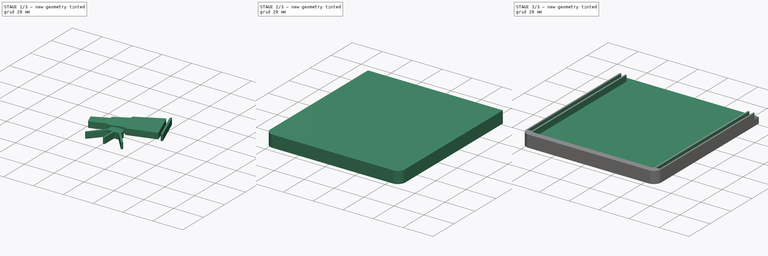
[diagram: build sequence overview — one tinted view per stage of 3, left to right]
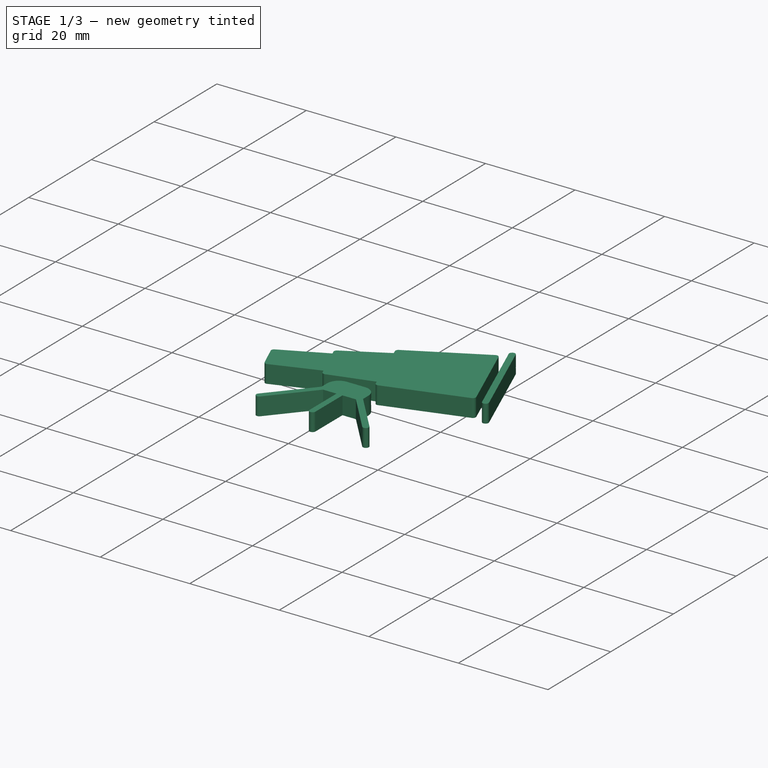
[diagram: stage 1 of 3 — iso view after this stage's code; geometry added in this stage tinted green]
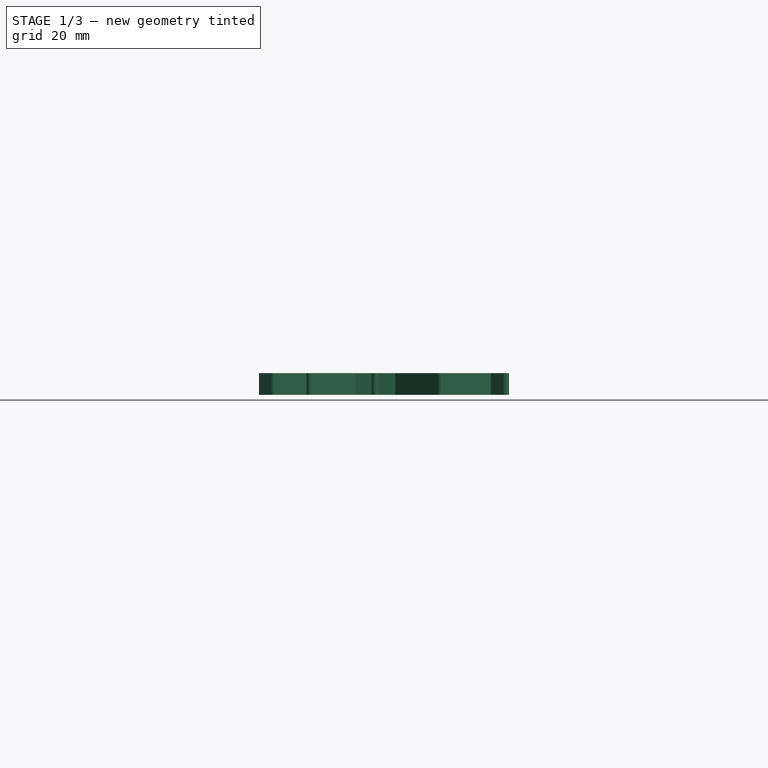
[diagram: stage 1 of 3 — front view after this stage's code; geometry added in this stage tinted green]
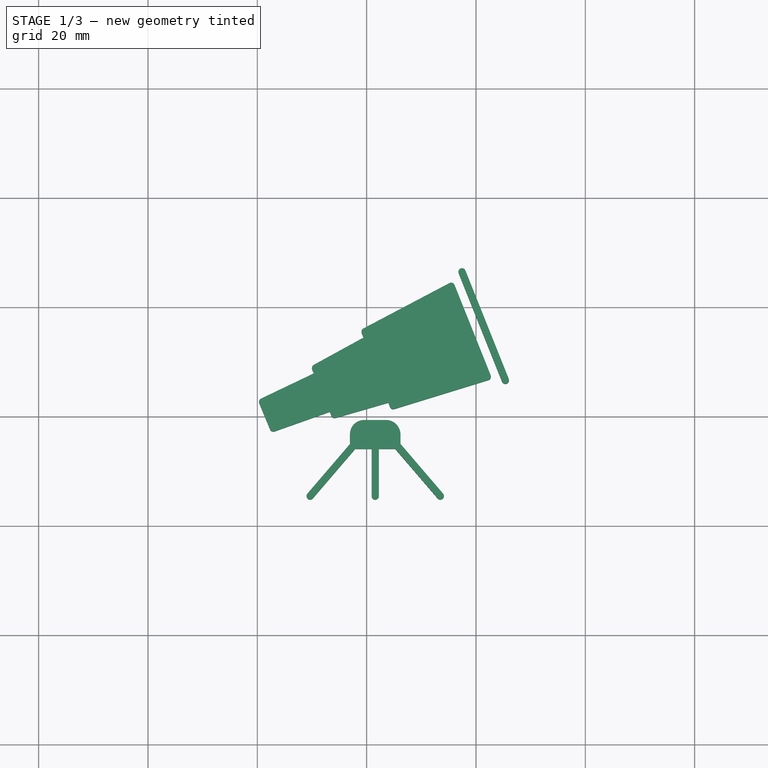
[diagram: stage 1 of 3 — top view after this stage's code; geometry added in this stage tinted green]
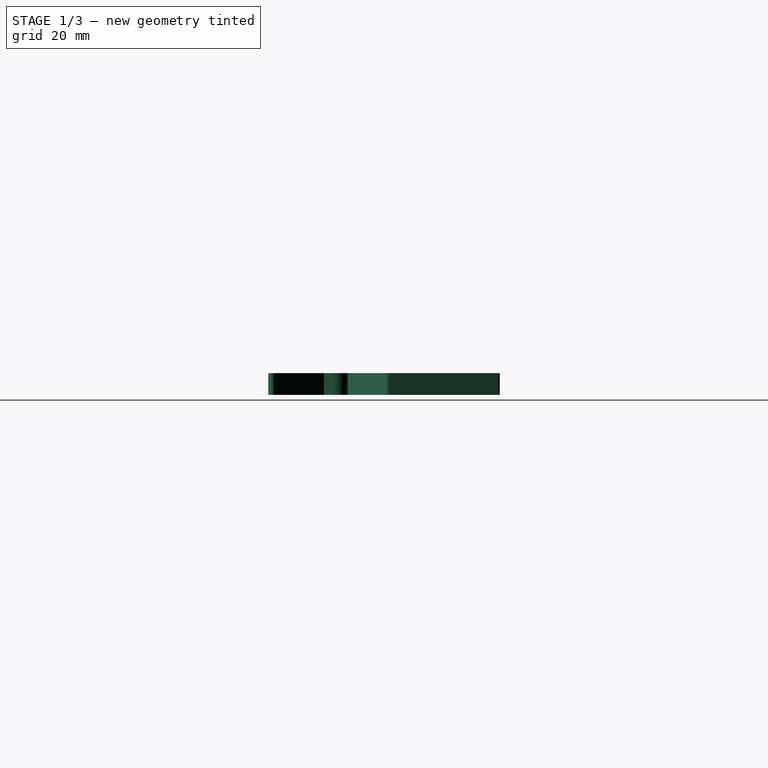
[diagram: stage 1 of 3 — right view after this stage's code; geometry added in this stage tinted green]
FCSTD DOCUMENT  (FreeCAD 1.0R38641 +468 (Git))
Label: EC-Box-Top
License: All rights reserved
LicenseURL: https://en.wikipedia.org/wiki/All_rights_reserved
objects: Sketcher::SketchObject×3, PartDesign::Pocket×2, Part::Feature×1, Part::Face×1, Part::Extrusion×1, PartDesign::FeatureBase×1, PartDesign::Pad×1, PartDesign::Body×1
note: 21 computed .brp shape members not serialized (recipe doc carries the construction recipe); baked Part::Feature solids carry a one-line shape summary decoded from their .brp

FEATURE [Sketcher::SketchObject] Sketch
  ArcFitTolerance = 1e-06
  AttachmentSupport = -> [XY_Plane]
  FullyConstrained = true
  MakeInternals = false
  MapMode = 5
  sketch-geometry (8):
    g0: LineSegment StartX=9.15e-14 StartY=98 StartZ=0 EndX=9.15e-14 EndY=5 EndZ=0
    g1: LineSegment StartX=5 StartY=5.3e-15 StartZ=0 EndX=85 EndY=5.3e-15 EndZ=0
    g2: LineSegment StartX=90 StartY=5 StartZ=0 EndX=90 EndY=98 EndZ=0
    g3: LineSegment StartX=90 StartY=98 StartZ=0 EndX=8.53e-14 EndY=98 EndZ=0
    g4: ArcOfCircle CenterX=85 CenterY=5 CenterZ=0 NormalX=0 NormalY=0 NormalZ=1 AngleXU=0 Radius=5 StartAngle=4.71239 EndAngle=6.28319
    g5: GeomPoint [constr] X=90 Y=-6.3e-15 Z=0
    g6: ArcOfCircle CenterX=5 CenterY=5 CenterZ=0 NormalX=0 NormalY=0 NormalZ=1 AngleXU=0 Radius=5 StartAngle=3.14159 EndAngle=4.71239
    g7: GeomPoint [constr] X=0 Y=-6.3e-15 Z=0
  constraints (20):
    c: Coincident(g2,g3)
    c: Coincident(g3,g0)
    c: Vertical(g0)
    c: Vertical(g2)
    c: Horizontal(g1)
    c: Horizontal(g3)
    c: Distance(g0,g2) = 90
    c: Distance(g7,g3) = 98
    c: PointOnObject(g5,g1)
    c: PointOnObject(g5,g2)
    c: Tangent(g1,g4) = -1.5708
    c: Tangent(g2,g4) = -1.5708
    c: PointOnObject(g7,g0)
    c: PointOnObject(g7,g1)
    c: Tangent(g0,g6) = -1.5708
    c: Tangent(g1,g6) = -1.5708
    c: DistanceX(g0,g6) = 5
    c: DistanceX(g4,g2) = 5
    c: DistanceY(g-1,g0) = 98
    c: DistanceX(g-1,g0) = 0
FEATURE [Part::Feature] Union001
  shape: bbox 45.8 x 42.37 x 1e-06 mm, 3 faces, 0 solids (baked)
FEATURE [Part::Face] Face001
  FaceMakerClass = Part::FaceMakerBullseye
  Sources = -> [Union001]
FEATURE [Sketcher::SketchObject] Sketch001
  ArcFitTolerance = 1e-06
  AttachmentSupport = -> [XY_Plane]
  FullyConstrained = true
  MakeInternals = false
  MapMode = 5
  sketch-geometry (12):
    g0: LineSegment StartX=4.5 StartY=98 StartZ=0 EndX=4.5 EndY=5 EndZ=0
    g1: LineSegment StartX=5.5 StartY=4 StartZ=0 EndX=84.5 EndY=4 EndZ=0
    g2: LineSegment StartX=85.5 StartY=5 StartZ=0 EndX=85.5 EndY=98 EndZ=0
    g3: LineSegment StartX=85.5 StartY=98 StartZ=0 EndX=4.5 EndY=98 EndZ=0
    g4: ArcOfCircle CenterX=84.5 CenterY=5 CenterZ=0 NormalX=0 NormalY=0 NormalZ=1 AngleXU=0 Radius=1 StartAngle=4.71239 EndAngle=6.28319
    g5: GeomPoint [constr] X=85.5 Y=4 Z=0
    g6: ArcOfCircle CenterX=5.5 CenterY=5 CenterZ=0 NormalX=0 NormalY=0 NormalZ=1 AngleXU=0 Radius=1 StartAngle=3.14159 EndAngle=4.71239
    g7: GeomPoint [constr] X=4.5 Y=4 Z=0
    g8: LineSegment StartX=0 StartY=98 StartZ=0 EndX=0 EndY=94 EndZ=0
    g9: LineSegment StartX=0 StartY=94 StartZ=0 EndX=90 EndY=94 EndZ=0
    g10: LineSegment StartX=90 StartY=94 StartZ=0 EndX=90 EndY=98 EndZ=0
    g11: LineSegment StartX=90 StartY=98 StartZ=0 EndX=0 EndY=98 EndZ=0
  constraints (32):
    c: Coincident(g2,g3)
    c: Coincident(g3,g0)
    c: Vertical(g0)
    c: Vertical(g2)
    c: Horizontal(g1)
    c: Horizontal(g3)
    c: Distance(g0,g2) = 81
    c: Distance(g7,g3) = 94
    c: DistanceY(g-1,g0) = 98
    c: DistanceX(g-1,g0) = 4.5
    c: PointOnObject(g5,g1)
    c: PointOnObject(g5,g2)
    c: Tangent(g1,g4) = -1.5708
    c: Tangent(g2,g4) = -1.5708
    c: PointOnObject(g7,g0)
    c: PointOnObject(g7,g1)
    c: Tangent(g0,g6) = -1.5708
    c: Tangent(g1,g6) = -1.5708
    c: DistanceX(g4,g2) = 1
    c: DistanceX(g0,g6) = 1
    c: Coincident(g8,g9)
    c: Coincident(g9,g10)
    c: Coincident(g10,g11)
    c: Coincident(g11,g8)
    c: Vertical(g8)
    c: Vertical(g10)
    c: Horizontal(g9)
    c: Horizontal(g11)
    c: Distance(g8,g10) = 90
    c: Distance(g9,g11) = 4
    c: DistanceY(g-1,g8) = 94
    c: DistanceX(g8,g-1) = 0
FEATURE [Part::Extrusion] Extrude
  Base = -> Face001
  Dir = (0,0,1)
  DirMode = 2
  FaceMakerClass = Part::FaceMakerBullseye
  FaceMakerMode = 3
  LengthFwd = 4
  LengthRev = 0
  Placement = pos=(2.34815,3.05321,-2) rot=(0,0,1;0rad)
  Solid = true
  Symmetric = false
FEATURE [PartDesign::FeatureBase] BaseFeature
  BaseFeature = -> Extrude
  Suppressed = false
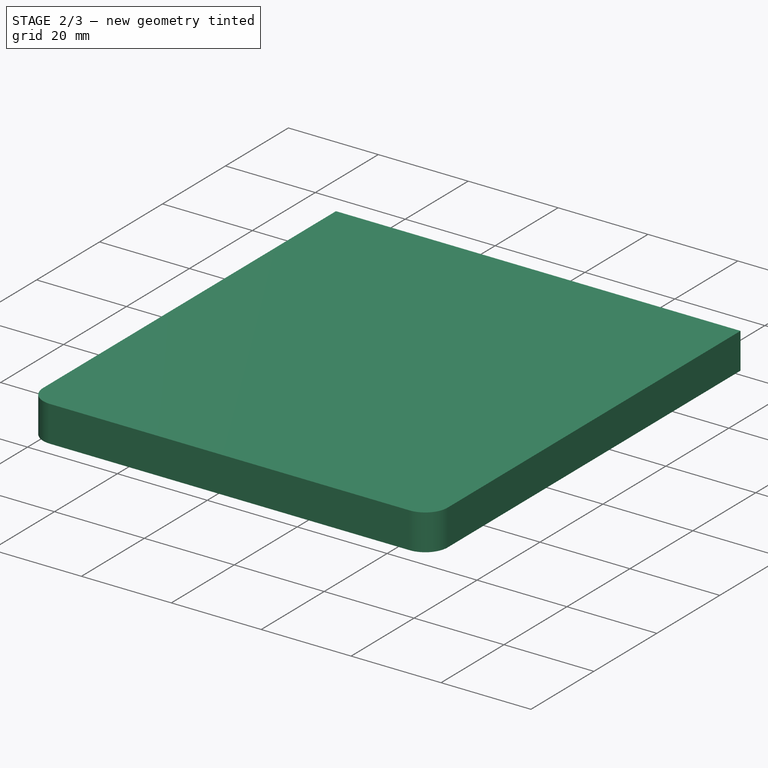
[diagram: stage 2 of 3 — iso view after this stage's code; geometry added in this stage tinted green]
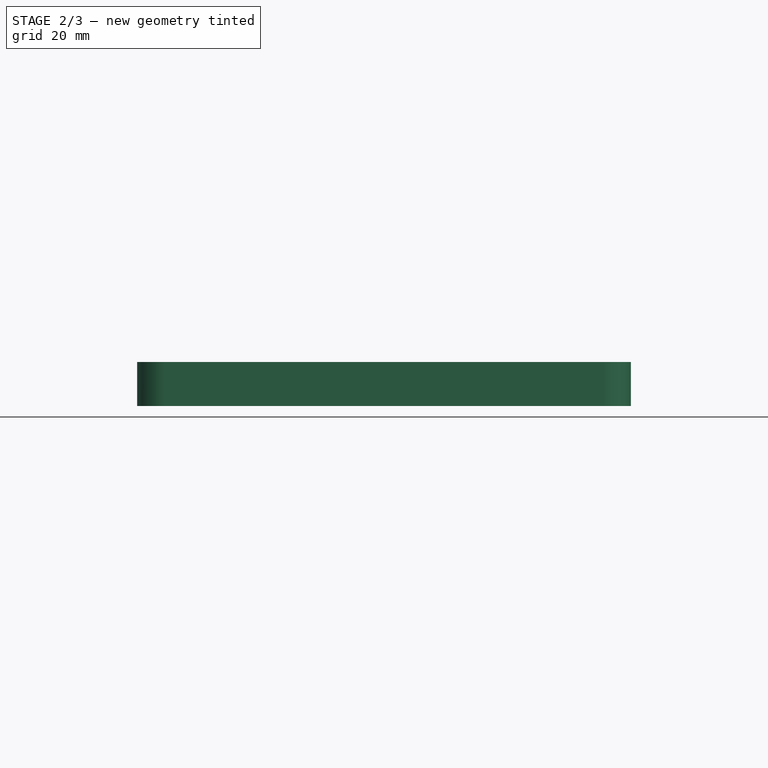
[diagram: stage 2 of 3 — front view after this stage's code; geometry added in this stage tinted green]
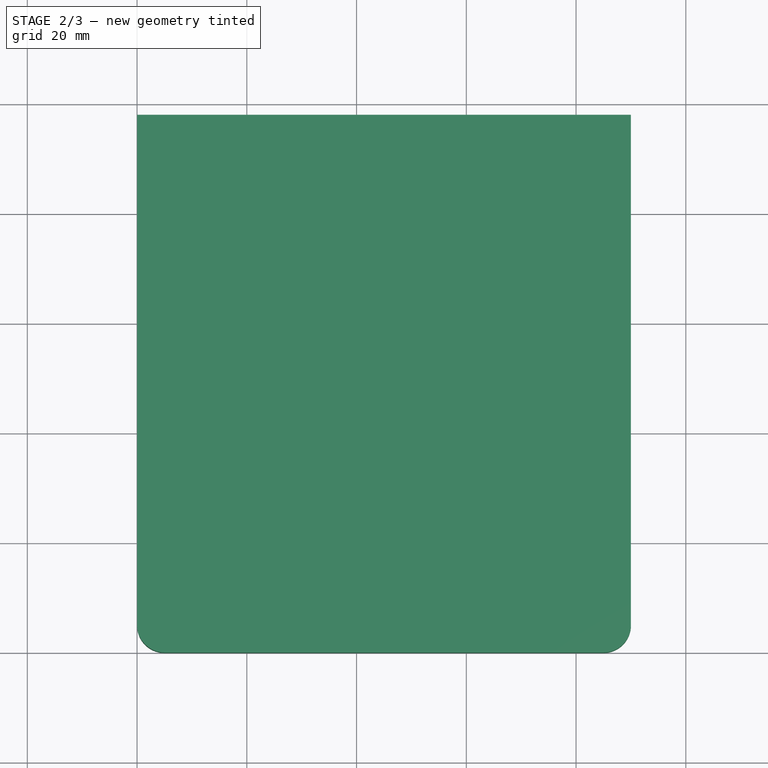
[diagram: stage 2 of 3 — top view after this stage's code; geometry added in this stage tinted green]
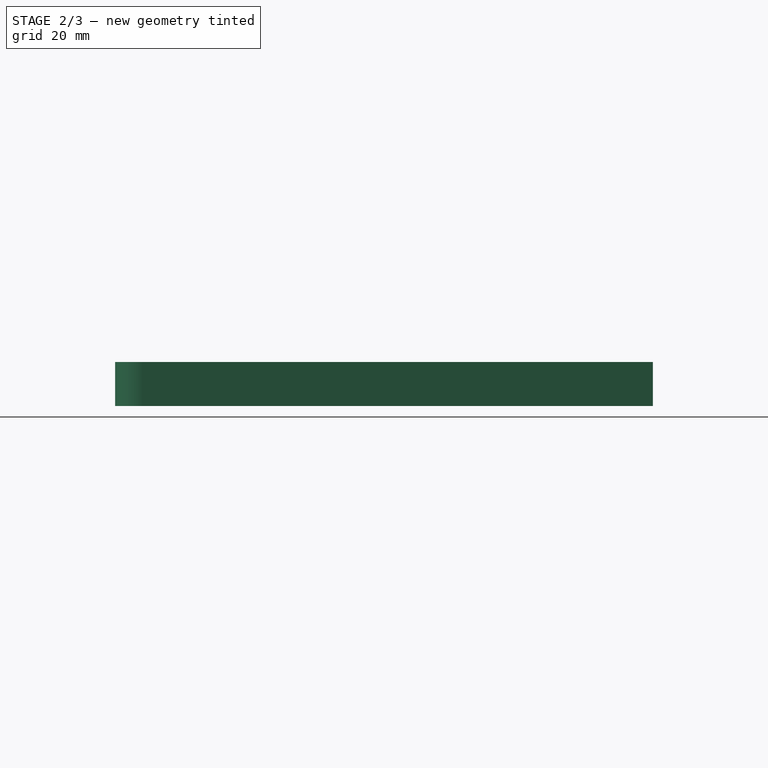
[diagram: stage 2 of 3 — right view after this stage's code; geometry added in this stage tinted green]
FEATURE [PartDesign::Pad] Pad
  BaseFeature = -> BaseFeature
  Direction = (0,0,1)
  Length = 8
  Length2 = 10
  Profile = -> Sketch
  ReferenceAxis = -> Sketch [N_Axis]
  Refine = true
  Suppressed = false
  Type = 0
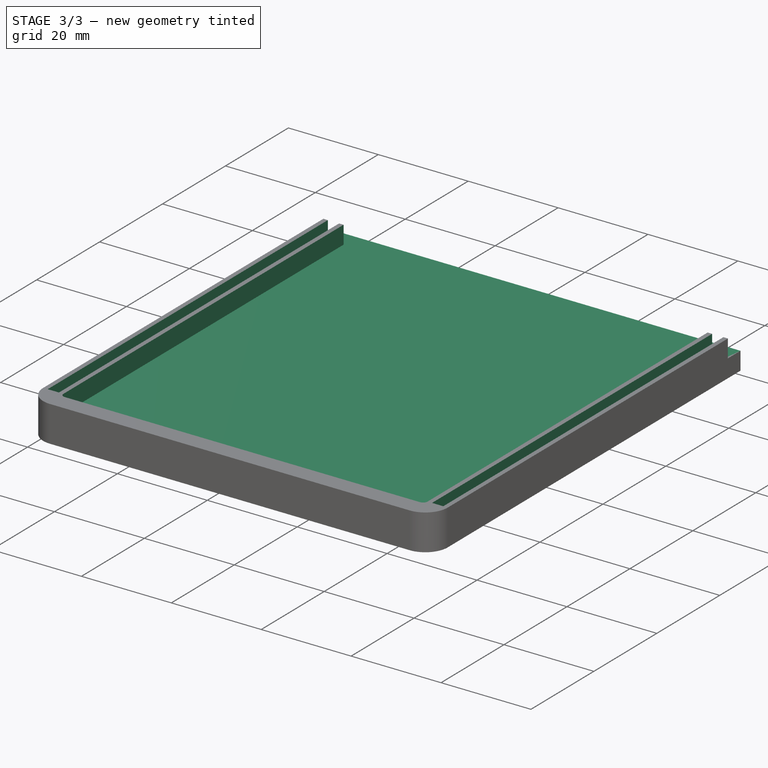
[diagram: stage 3 of 3 — iso view after this stage's code; geometry added in this stage tinted green]
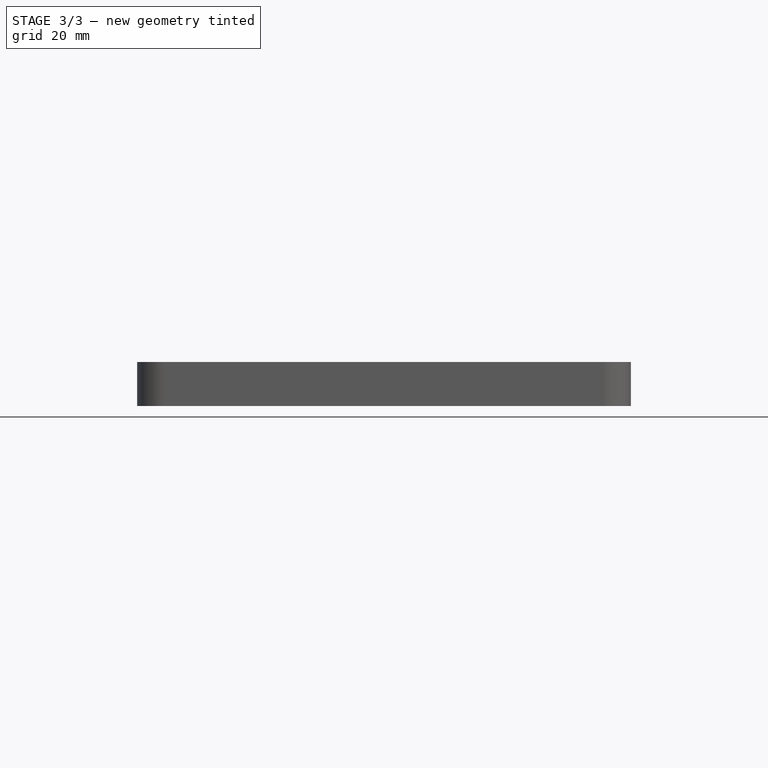
[diagram: stage 3 of 3 — front view after this stage's code; geometry added in this stage tinted green]
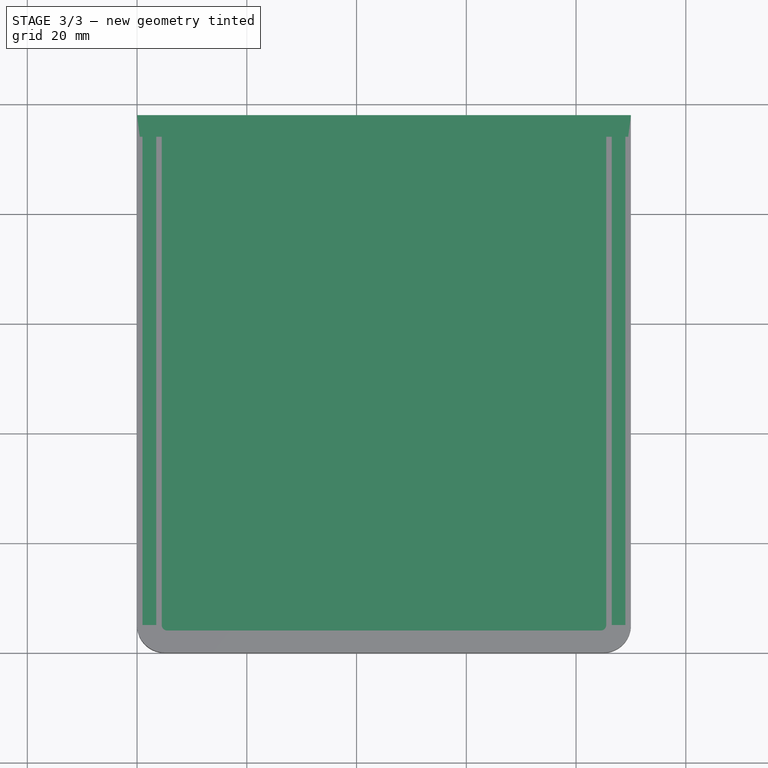
[diagram: stage 3 of 3 — top view after this stage's code; geometry added in this stage tinted green]
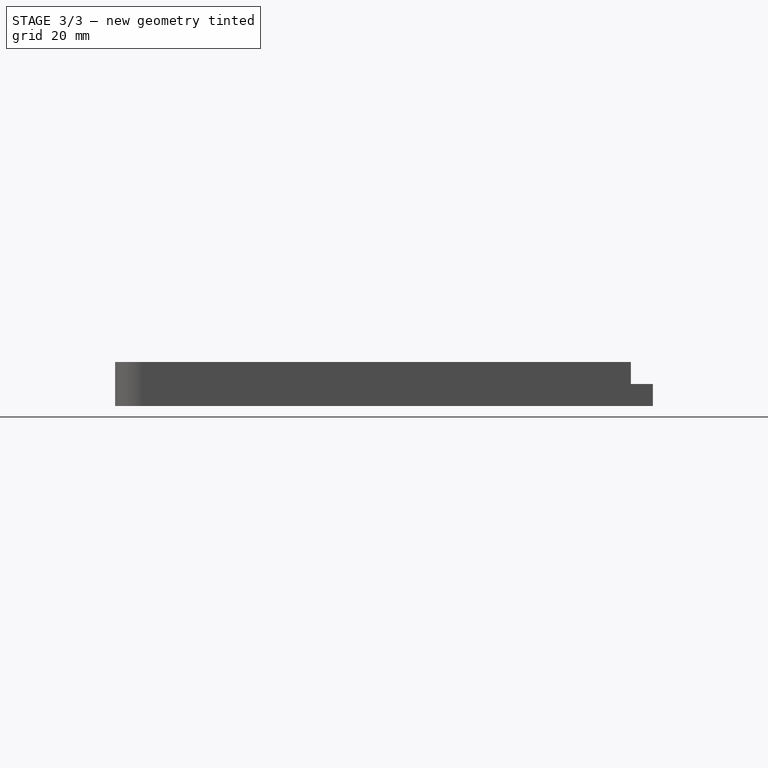
[diagram: stage 3 of 3 — right view after this stage's code; geometry added in this stage tinted green]
FEATURE [PartDesign::Pocket] Pocket
  BaseFeature = -> Pad
  Direction = (0,0,-1)
  Length = 4
  Length2 = -8
  Profile = -> Sketch001
  ReferenceAxis = -> Sketch001 [N_Axis]
  Refine = true
  Reversed = true
  Suppressed = false
  Type = 4
FEATURE [Sketcher::SketchObject] Sketch002  label="side-canals"
  ArcFitTolerance = 1e-06
  AttachmentSupport = -> [XZ_Plane]
  FullyConstrained = true
  MakeInternals = false
  MapMode = 5
  Placement = pos=(0,0,0) rot=(1,0,0;1.5708rad)
  sketch-geometry (16):
    g0: LineSegment StartX=86 StartY=5 StartZ=0 EndX=86 EndY=4 EndZ=0
    g1: LineSegment StartX=86 StartY=4 StartZ=0 EndX=89.5 EndY=4 EndZ=0
    g2: LineSegment StartX=89.5 StartY=4 StartZ=0 EndX=89.5 EndY=5 EndZ=0
    g3: LineSegment StartX=89.5 StartY=5 StartZ=0 EndX=86 EndY=5 EndZ=0
    g4: LineSegment StartX=86.5 StartY=8 StartZ=0 EndX=86.5 EndY=5 EndZ=0
    g5: LineSegment StartX=86.5 StartY=5 StartZ=0 EndX=89 EndY=5 EndZ=0
    g6: LineSegment StartX=89 StartY=5 StartZ=0 EndX=89 EndY=8 EndZ=0
    g7: LineSegment StartX=89 StartY=8 StartZ=0 EndX=86.5 EndY=8 EndZ=0
    g8: LineSegment StartX=0.5 StartY=5 StartZ=0 EndX=0.5 EndY=3.75 EndZ=0
    g9: LineSegment StartX=0.5 StartY=3.75 StartZ=0 EndX=4 EndY=3.75 EndZ=0
    g10: LineSegment StartX=4 StartY=3.75 StartZ=0 EndX=4 EndY=5 EndZ=0
    g11: LineSegment StartX=4 StartY=5 StartZ=0 EndX=0.5 EndY=5 EndZ=0
    g12: LineSegment StartX=1 StartY=8 StartZ=0 EndX=1 EndY=5 EndZ=0
    g13: LineSegment StartX=1 StartY=5 StartZ=0 EndX=3.5 EndY=5 EndZ=0
    g14: LineSegment StartX=3.5 StartY=5 StartZ=0 EndX=3.5 EndY=8 EndZ=0
    g15: LineSegment StartX=3.5 StartY=8 StartZ=0 EndX=1 EndY=8 EndZ=0
  constraints (48):
    c: Coincident(g0,g1)
    c: Coincident(g1,g2)
    c: Coincident(g2,g3)
    c: Coincident(g3,g0)
    c: Vertical(g0)
    c: Vertical(g2)
    c: Horizontal(g1)
    c: Horizontal(g3)
    c: Distance(g0,g2) = 3.5
    c: Distance(g1,g3) = 1
    c: Coincident(g4,g5)
    c: Coincident(g5,g6)
    c: Coincident(g6,g7)
    c: Coincident(g7,g4)
    c: Vertical(g4)
    c: Vertical(g6)
    c: Horizontal(g5)
    c: Horizontal(g7)
    c: Distance(g4,g6) = 2.5
    c: Distance(g5,g7) = 3
    c: DistanceY(g0,g4) = 0
    c: DistanceX(g0,g4) = 0.5
    c: DistanceY(g-1,g4) = 8
    c: Coincident(g8,g9)
    c: Coincident(g9,g10)
    c: Coincident(g10,g11)
    c: Coincident(g11,g8)
    c: Vertical(g8)
    c: Vertical(g10)
    c: Horizontal(g9)
    c: Horizontal(g11)
    c: Distance(g8,g10) = 3.5
    c: Distance(g9,g11) = 1.25
    c: DistanceX(g-1,g8) = 0.5
    c: Coincident(g12,g13)
    c: Coincident(g13,g14)
    c: Coincident(g14,g15)
    c: Coincident(g15,g12)
    c: Vertical(g12)
    c: Vertical(g14)
    c: Horizontal(g13)
    c: Horizontal(g15)
    c: Distance(g12,g14) = 2.5
    c: Distance(g13,g15) = 3
    c: DistanceY(g8,g12) = 0
    c: DistanceX(g8,g12) = 0.5
    c: DistanceY(g-1,g12) = 8
    c: DistanceX(g-1,g1) = 89.5
FEATURE [PartDesign::Pocket] Pocket001
  BaseFeature = -> Pocket
  Direction = (0,1,-2e-16)
  Length = 94
  Length2 = -5
  Profile = -> Sketch002
  ReferenceAxis = -> Sketch002 [N_Axis]
  Refine = true
  Suppressed = false
  Type = 4
FEATURE [PartDesign::Body] Body  label="Ec-Box-Top"
  AllowCompound = false
  BaseFeature = -> Extrude
  Group = -> [BaseFeature,Sketch,Pad,Sketch001,Pocket,Sketch002,Pocket001]
  Origin = -> Origin
  Tip = -> Pocket001
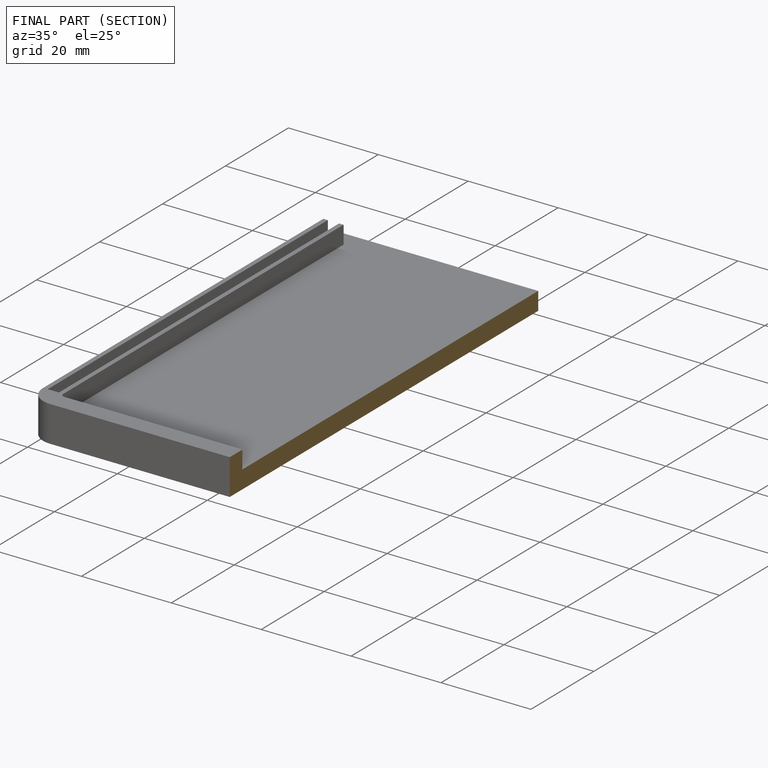
[diagram: finished part — half-section view (interior)]
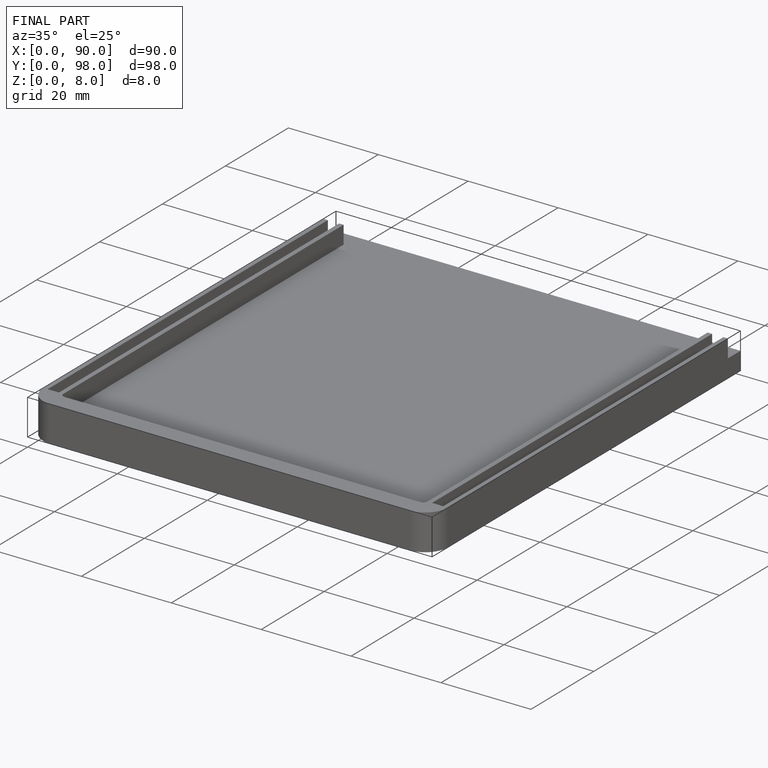
[diagram: finished part — iso view with bounding-box wireframe]
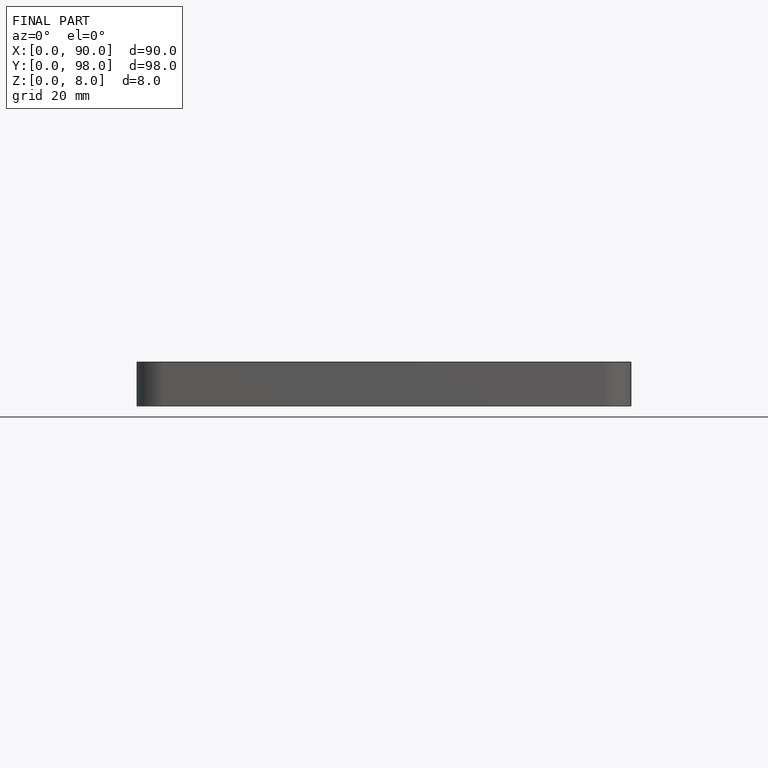
[diagram: finished part — front view with bounding-box wireframe]
